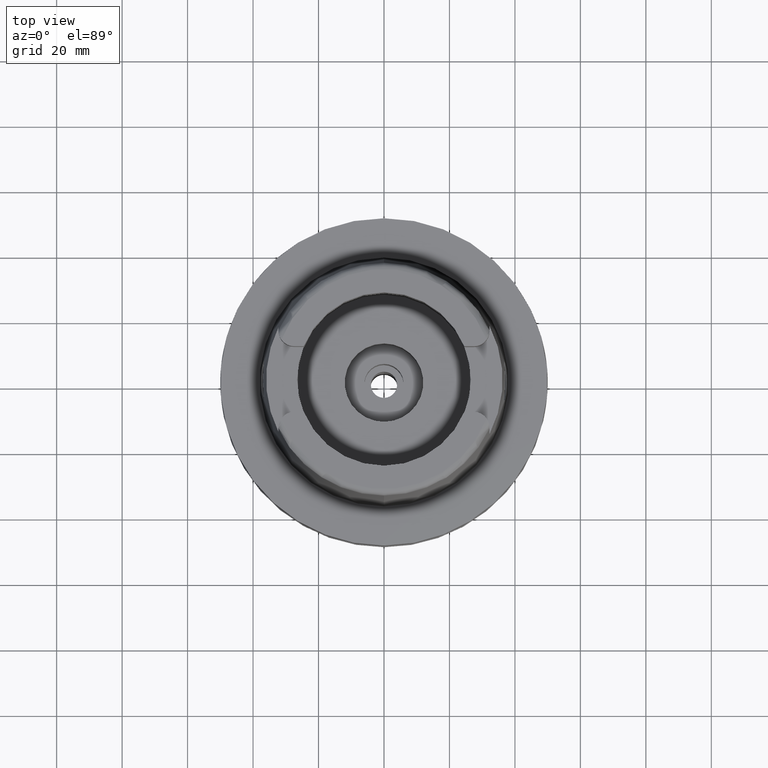
[diagram: clean part render]
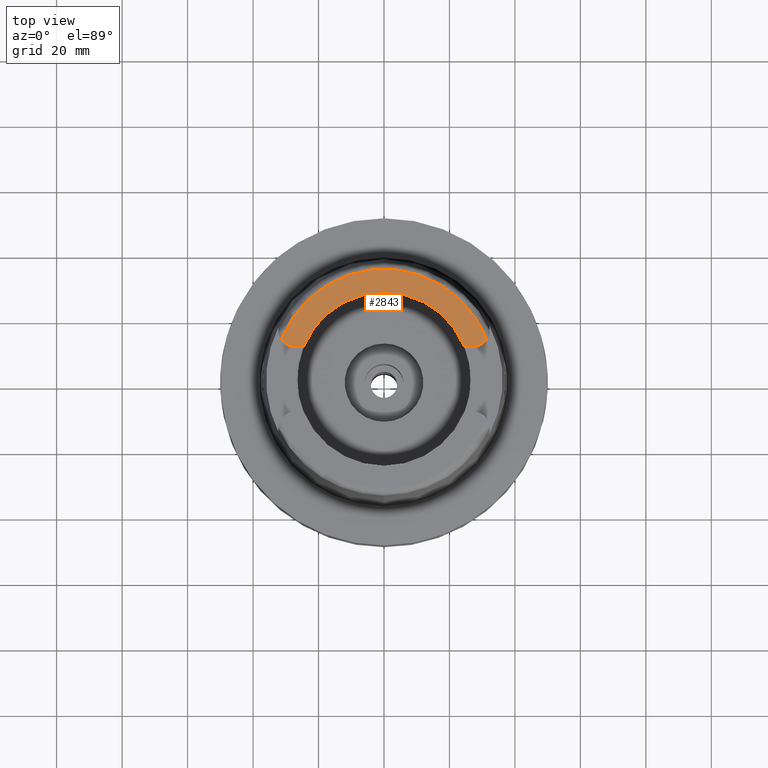
[diagram: same view with one face highlighted and labeled with its STEP entity id]
A machine part, top view. The second image highlights one B-rep face of the part: STEP entity #2843.
In plain terms, the highlighted planar face has unit normal (0, 0, 1).
Its self-contained STEP definition (entity closure, byte-faithful):
#17=CARTESIAN_POINT('',(-2.737E1,1.489E1,5.E1));
#18=DIRECTION('',(0.E0,0.E0,-1.E0));
#19=DIRECTION('',(0.E0,-1.E0,0.E0));
#20=AXIS2_PLACEMENT_3D('',#17,#18,#19);
#26=CARTESIAN_POINT('',(0.E0,0.E0,5.E1));
#27=DIRECTION('',(0.E0,0.E0,-1.E0));
#28=DIRECTION('',(-9.332215253018E-1,3.593015233942E-1,0.E0));
#29=AXIS2_PLACEMENT_3D('',#26,#27,#28);
#34=CARTESIAN_POINT('',(2.737E1,1.489E1,5.E1));
#35=DIRECTION('',(0.E0,0.E0,-1.E0));
#36=DIRECTION('',(8.163632566569E-1,-5.775387720150E-1,0.E0));
#37=AXIS2_PLACEMENT_3D('',#34,#35,#36);
#42=CARTESIAN_POINT('',(0.E0,0.E0,5.E1));
#43=DIRECTION('',(0.E0,0.E0,1.E0));
#44=DIRECTION('',(9.259134021805E-1,3.777358490566E-1,0.E0));
#45=AXIS2_PLACEMENT_3D('',#42,#43,#44);
#50=CARTESIAN_POINT('',(0.E0,0.E0,5.E1));
#51=DIRECTION('',(0.E0,0.E0,1.E0));
#52=DIRECTION('',(0.E0,1.E0,0.E0));
#53=AXIS2_PLACEMENT_3D('',#50,#51,#52);
#72=DIRECTION('',(1.E0,1.429464217237E-13,0.E0));
#73=VECTOR('',#72,2.833294842218E0);
#74=CARTESIAN_POINT('',(-2.737E1,1.001E1,5.E1));
#75=LINE('',#74,#73);
#2365=DIRECTION('',(1.E0,-1.423194637337E-13,0.E0));
#2366=VECTOR('',#2365,2.833294842218E0);
#2367=CARTESIAN_POINT('',(2.453670515778E1,1.001E1,5.E1));
#2368=LINE('',#2367,#2366);
#2454=CARTESIAN_POINT('',(-2.737E1,1.001E1,5.E1));
#2455=CARTESIAN_POINT('',(-3.135385269249E1,1.207161079257E1,5.E1));
#2456=VERTEX_POINT('',#2454);
#2457=VERTEX_POINT('',#2455);
#2458=CARTESIAN_POINT('',(3.135385269249E1,1.207161079257E1,5.E1));
#2459=VERTEX_POINT('',#2458);
#2460=CARTESIAN_POINT('',(2.737E1,1.001E1,5.E1));
#2461=VERTEX_POINT('',#2460);
#2462=CARTESIAN_POINT('',(2.453670515778E1,1.001E1,5.E1));
#2463=VERTEX_POINT('',#2462);
#2464=CARTESIAN_POINT('',(0.E0,2.65E1,5.E1));
#2465=VERTEX_POINT('',#2464);
#2466=CARTESIAN_POINT('',(-2.453670515778E1,1.001E1,5.E1));
#2467=VERTEX_POINT('',#2466);
#2822=CARTESIAN_POINT('',(0.E0,0.E0,5.E1));
#2823=DIRECTION('',(0.E0,0.E0,1.E0));
#2824=DIRECTION('',(0.E0,1.E0,0.E0));
#2825=AXIS2_PLACEMENT_3D('',#2822,#2823,#2824);
#2826=PLANE('',#2825);
#2828=ORIENTED_EDGE('',*,*,#2827,.T.);
#2830=ORIENTED_EDGE('',*,*,#2829,.T.);
#2832=ORIENTED_EDGE('',*,*,#2831,.T.);
#2834=ORIENTED_EDGE('',*,*,#2833,.F.);
#2836=ORIENTED_EDGE('',*,*,#2835,.T.);
#2838=ORIENTED_EDGE('',*,*,#2837,.T.);
#2840=ORIENTED_EDGE('',*,*,#2839,.F.);
#2841=EDGE_LOOP('',(#2828,#2830,#2832,#2834,#2836,#2838,#2840));
#2842=FACE_OUTER_BOUND('',#2841,.F.);
#21=CIRCLE('',#20,4.88E0);
#30=CIRCLE('',#29,3.359743838136E1);
#38=CIRCLE('',#37,4.88E0);
#46=CIRCLE('',#45,2.65E1);
#54=CIRCLE('',#53,2.65E1);
#2827=EDGE_CURVE('',#2456,#2457,#21,.T.);
#2829=EDGE_CURVE('',#2457,#2459,#30,.T.);
#2831=EDGE_CURVE('',#2459,#2461,#38,.T.);
#2833=EDGE_CURVE('',#2463,#2461,#2368,.T.);
#2835=EDGE_CURVE('',#2463,#2465,#46,.T.);
#2837=EDGE_CURVE('',#2465,#2467,#54,.T.);
#2839=EDGE_CURVE('',#2456,#2467,#75,.T.);
#2843=ADVANCED_FACE('',(#2842),#2826,.T.);